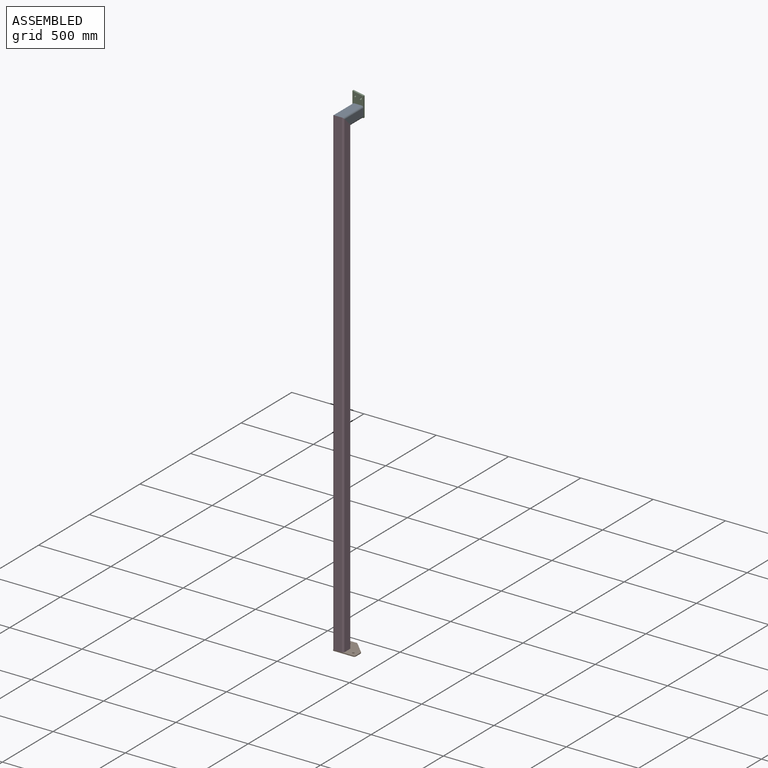
[diagram: assembled view]
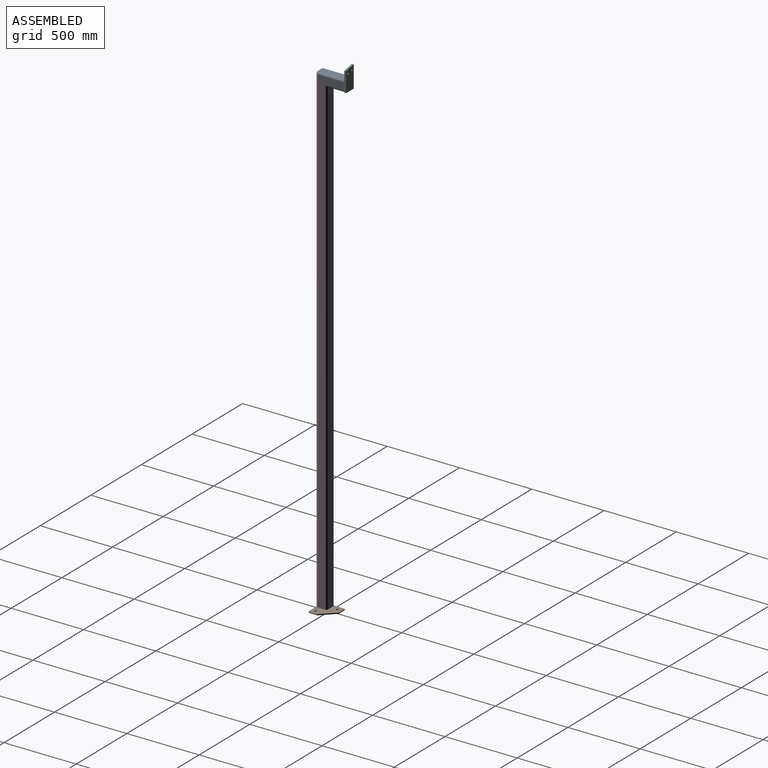
[diagram: assembled view, second angle]
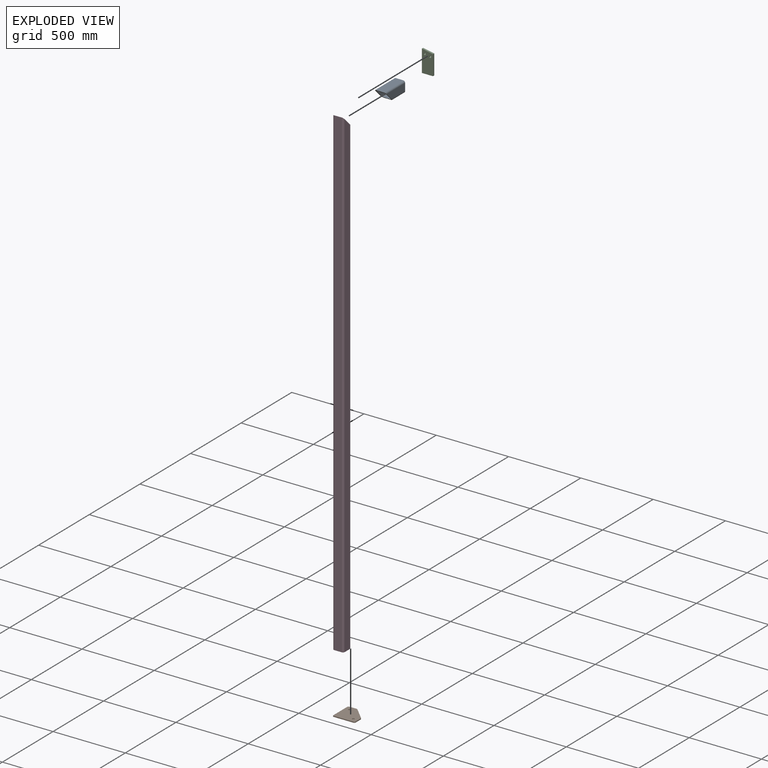
[diagram: exploded view]
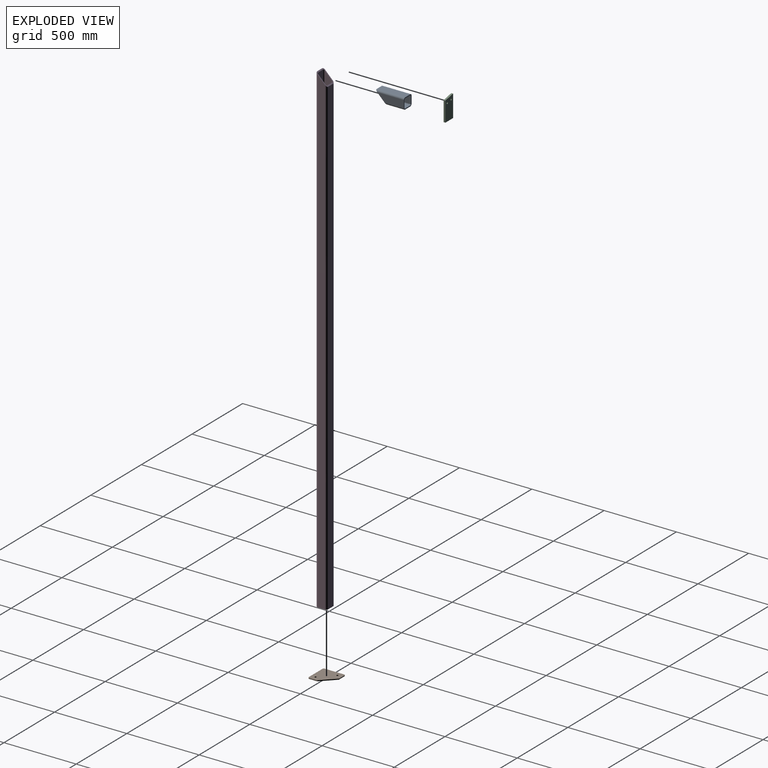
[diagram: exploded view, second angle]
ASSEMBLY  parts=4 mates=2
PART A: 18 faces, bbox 196.9x76.2x76.2 mm
  f0: plane 196.85x50.8mm, normal (0,0,1), area 10000mm2, adj f1,f7,f8,f9
  f1: cylinder r=12.7mm len=196.85mm, axis (-1,0,0), area 3834.9mm2, adj f0,f2,f8,f9
  f2: plane 184.15x50.8mm, normal (0,1,0), area 8064.5mm2, adj f1,f3,f8,f9
  f3: cylinder r=12.7mm len=133.35mm, axis (-1,0,0), area 2498.9mm2, adj f2,f4,f8,f9
  f4: plane 120.65x50.8mm, normal (0,0,-1), area 6129mm2, adj f3,f5,f8,f9
  f5: cylinder r=12.7mm len=133.35mm, axis (-1,0,0), area 2498.9mm2, adj f4,f6,f8,f9
  f6: plane 184.15x50.8mm, normal (0,-1,0), area 8064.5mm2, adj f5,f7,f8,f9
  f7: cylinder r=12.7mm len=196.85mm, axis (-1,0,0), area 3834.9mm2, adj f0,f6,f8,f9
  f8: plane 76.2x76.2mm, normal (0.71,0,-0.71), area 2362.2mm2, adj f0,f1,f2,f3,f4,f5,f6,f7
  f9: plane 76.2x76.2mm, normal (-1,0,0), area 1670.3mm2, adj f0,f1,f2,f3,f4,f5,f6,f7
  f10: cylinder r=6.35mm len=133.35mm, axis (-1,0,0), area 1289.8mm2, adj f8,f9,f11,f17
  f11: plane 184.15x50.8mm, normal (0,-1,0), area 8064.5mm2, adj f8,f9,f10,f12
  f12: cylinder r=6.35mm len=190.5mm, axis (-1,0,0), area 1877.2mm2, adj f8,f9,f11,f13
  f13: plane 190.5x50.8mm, normal (0,0,-1), area 9677.4mm2, adj f8,f9,f12,f14
  f14: cylinder r=6.35mm len=190.5mm, axis (-1,0,0), area 1877.2mm2, adj f8,f9,f13,f15
  f15: plane 184.15x50.8mm, normal (0,1,0), area 8064.5mm2, adj f8,f9,f14,f16
  f16: cylinder r=6.35mm len=133.35mm, axis (-1,0,0), area 1289.8mm2, adj f8,f9,f15,f17
  f17: plane 127x50.8mm, normal (0,0,1), area 6451.6mm2, adj f8,f9,f10,f16
PART B: 14 faces, bbox 152.4x152.4x6.4 mm
  f0: cylinder r=7.14mm len=14.29mm, axis (0,0,1), area 285mm2, adj f7,f8
  f1: cylinder r=7.14mm len=14.29mm, axis (0,0,1), area 285mm2, adj f7,f8
  f2: plane 136.53x6.35mm, normal (-1,0,0), area 866.9mm2, adj f7,f8,f12,f13
  f3: plane 50.03x6.35mm, normal (0,1,0), area 317.7mm2, adj f7,f8,f9,f12
  f4: plane 83.32x83.32mm, normal (0.71,0.71,0), area 748.2mm2, adj f7,f8,f9,f10
  f5: plane 50.03x6.35mm, normal (1,0,0), area 317.7mm2, adj f7,f8,f10,f11
  f6: plane 136.53x6.35mm, normal (0,-1,0), area 866.9mm2, adj f7,f8,f11,f13
  f7: plane 152.4x152.4mm, normal (0,0,-1), area 18902mm2, adj f0,f1,f2,f3,f4,f5,f6,f9
  f8: plane 152.4x152.4mm, normal (0,0,1), area 18902mm2, adj f0,f1,f2,f3,f4,f5,f6,f9
  f9: cylinder r=9.53mm len=6.74mm, axis (0,0,1), area 47.5mm2, adj f3,f4,f7,f8
  f10: cylinder r=9.53mm len=6.74mm, axis (0,0,1), area 47.5mm2, adj f4,f5,f7,f8
  f11: cylinder r=9.53mm len=9.53mm, axis (0,0,1), area 95mm2, adj f5,f6,f7,f8
  f12: cylinder r=9.53mm len=9.53mm, axis (0,0,1), area 95mm2, adj f2,f3,f7,f8
  f13: cylinder r=6.35mm len=6.35mm, axis (0,0,1), area 63.3mm2, adj f2,f6,f7,f8
PART C: 8 faces, bbox 76.2x12.7x152.4 mm
  f0: plane 152.4x12.7mm, normal (-1,0,0), area 1935.5mm2, adj f1,f5,f6,f7
  f1: plane 76.2x12.7mm, normal (0,0,-1), area 967.7mm2, adj f0,f2,f6,f7
  f2: plane 137.59x12.7mm, normal (1,0,0), area 1747.4mm2, adj f1,f5,f6,f7
  f3: cylinder r=6.35mm len=12.7mm, axis (0,1,0), area 506.7mm2, adj f6,f7
  f4: cylinder r=6.35mm len=12.7mm, axis (0,1,0), area 506.7mm2, adj f6,f7
  f5: plane 76.2x14.81mm, normal (0.19,0,0.98), area 985.9mm2, adj f0,f2,f6,f7
  f6: plane 152.4x76.2mm, normal (0,-1,0), area 10795.2mm2, adj f0,f1,f2,f3,f4,f5
  f7: plane 152.4x76.2mm, normal (0,1,0), area 10795.2mm2, adj f0,f1,f2,f3,f4,f5
PART D: 18 faces, bbox 76.2x76.2x3343.3 mm
  f0: plane 3343.28x50.8mm, normal (1,0,0), area 169838.4mm2, adj f1,f7,f8,f9
  f1: cylinder r=12.7mm len=3343.28mm, axis (0,0,1), area 66602.9mm2, adj f0,f2,f8,f9
  f2: plane 3330.58x50.8mm, normal (0,1,0), area 167902.9mm2, adj f1,f3,f8,f9
  f3: cylinder r=12.7mm len=3279.78mm, axis (0,0,1), area 65266.9mm2, adj f2,f4,f8,f9
  f4: plane 3267.08x50.8mm, normal (-1,0,0), area 165967.4mm2, adj f3,f5,f8,f9
  f5: cylinder r=12.7mm len=3279.78mm, axis (0,0,1), area 65266.9mm2, adj f4,f6,f8,f9
  f6: plane 3330.58x50.8mm, normal (0,-1,0), area 167902.9mm2, adj f5,f7,f8,f9
  f7: cylinder r=12.7mm len=3343.28mm, axis (0,0,1), area 66602.9mm2, adj f0,f6,f8,f9
  f8: plane 76.2x76.2mm, normal (0,0,-1), area 1670.3mm2, adj f0,f1,f2,f3,f4,f5,f6,f7
  f9: plane 76.2x76.2mm, normal (-0.71,0,0.71), area 2362.2mm2, adj f0,f1,f2,f3,f4,f5,f6,f7
  f10: cylinder r=6.35mm len=3279.78mm, axis (0,0,1), area 32674.4mm2, adj f8,f9,f11,f17
  f11: plane 3330.58x50.8mm, normal (0,-1,0), area 167902.9mm2, adj f8,f9,f10,f12
  f12: cylinder r=6.35mm len=3336.93mm, axis (0,0,1), area 33261.7mm2, adj f8,f9,f11,f13
  f13: plane 3336.93x50.8mm, normal (-1,0,0), area 169515.8mm2, adj f8,f9,f12,f14
  f14: cylinder r=6.35mm len=3336.93mm, axis (0,0,1), area 33261.7mm2, adj f8,f9,f13,f15
  f15: plane 3330.58x50.8mm, normal (0,1,0), area 167902.9mm2, adj f8,f9,f14,f16
  f16: cylinder r=6.35mm len=3279.78mm, axis (0,0,1), area 32674.4mm2, adj f8,f9,f15,f17
  f17: plane 3273.43x50.8mm, normal (1,0,0), area 166290mm2, adj f8,f9,f10,f16
PLACE A rot(axis=(0,0,-1),90deg) t=(-216.53,-517.98,1397.54)mm
PLACE B t=(-253.04,-517.98,1397.54)mm
PLACE C t=(-216.53,-308.43,4740.81)mm
PLACE D rot(axis=(0,0,-1),90deg) t=(-216.53,-517.98,1397.54)mm
MATE fastened C.f6 <-> A.f9  axis (0,-1,0) through (-216.53,-321.13,4664.61)mm
MATE fastened D.f8 <-> B.f8  axis (0,0,-1) through (-254.63,-479.88,1397.54)mm
